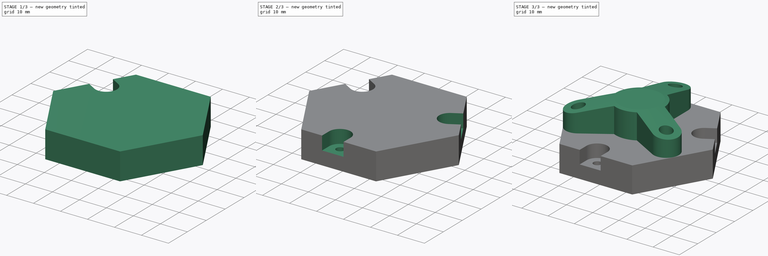
[diagram: build sequence overview — one tinted view per stage of 3, left to right]
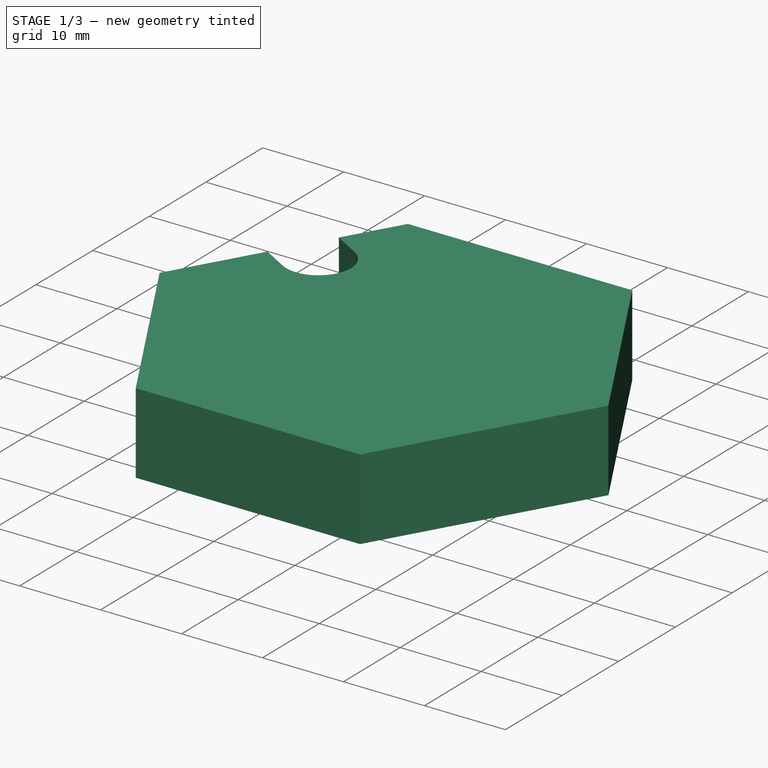
[diagram: stage 1 of 3 — iso view after this stage's code; geometry added in this stage tinted green]
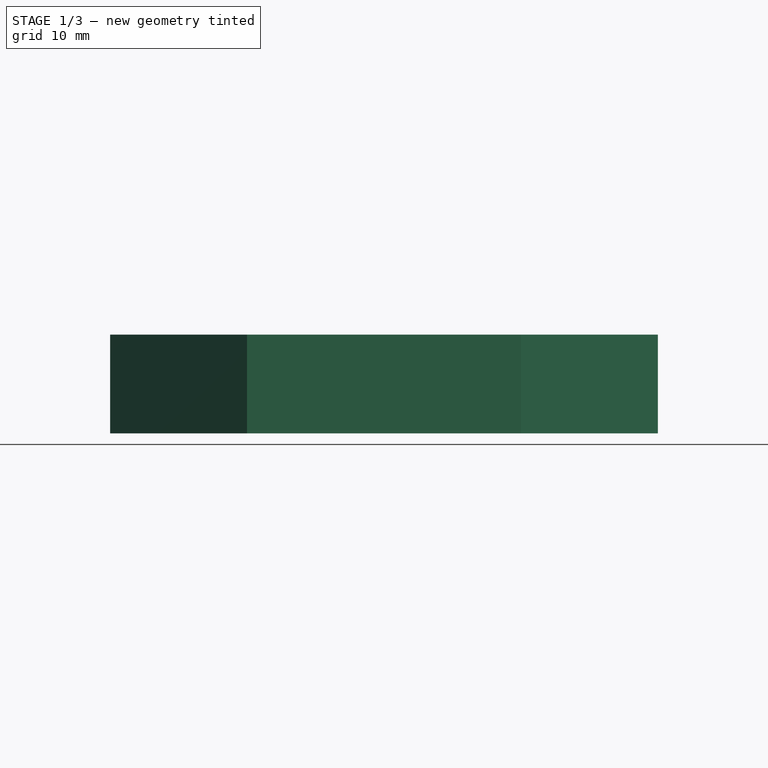
[diagram: stage 1 of 3 — front view after this stage's code; geometry added in this stage tinted green]
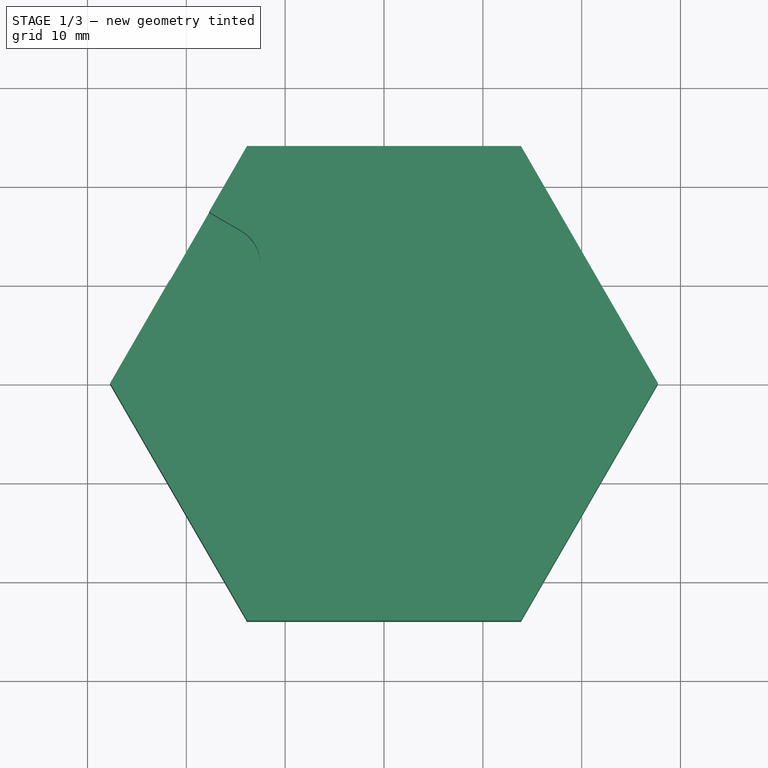
[diagram: stage 1 of 3 — top view after this stage's code; geometry added in this stage tinted green]
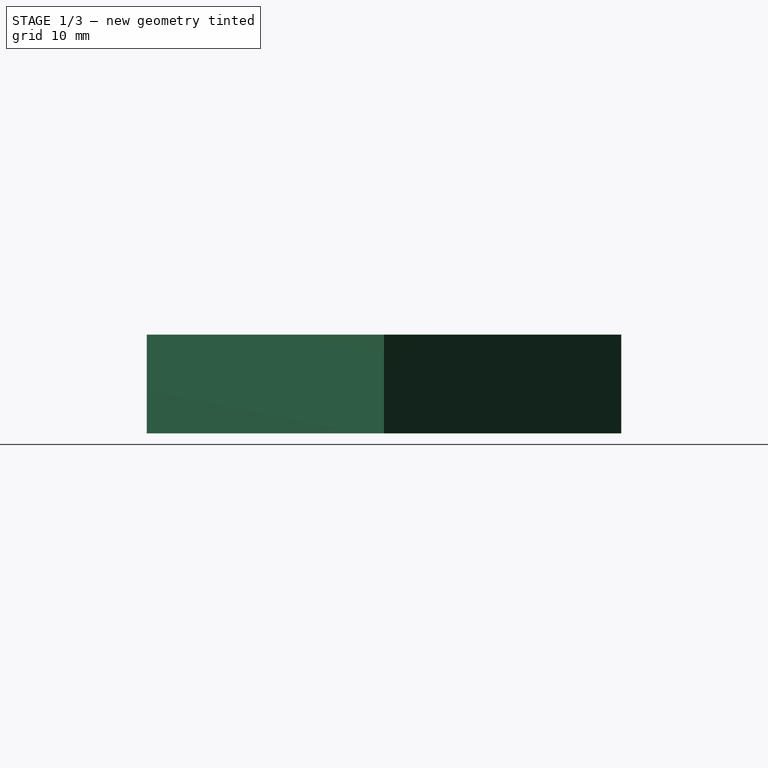
[diagram: stage 1 of 3 — right view after this stage's code; geometry added in this stage tinted green]
FCSTD DOCUMENT  (FreeCAD 0.21R33771 (Git))
Label: ex24
License: All rights reserved
LicenseURL: http://en.wikipedia.org/wiki/All_rights_reserved
objects: Sketcher::SketchObject×6, PartDesign::Pad×2, PartDesign::Pocket×2, PartDesign::PolarPattern×1, PartDesign::Groove×1, PartDesign::Body×1
note: 18 computed .brp shape members not serialized (recipe doc carries the construction recipe); baked Part::Feature solids carry a one-line shape summary decoded from their .brp

FEATURE [Sketcher::SketchObject] Sketch
  FullyConstrained = true
  MapMode = 5
  Support = -> [XY_Plane]
  sketch-geometry (7):
    g0: LineSegment StartX=13.8564 StartY=-24 StartZ=0 EndX=27.7128 EndY=0 EndZ=0
    g1: LineSegment StartX=27.7128 StartY=0 StartZ=0 EndX=13.8564 EndY=24 EndZ=0
    g2: LineSegment StartX=13.8564 StartY=24 StartZ=0 EndX=-13.8564 EndY=24 EndZ=0
    g3: LineSegment StartX=-13.8564 StartY=24 StartZ=0 EndX=-27.7128 EndY=3.6e-15 EndZ=0
    g4: LineSegment StartX=-27.7128 StartY=3.5e-15 StartZ=0 EndX=-13.8564 EndY=-24 EndZ=0
    g5: LineSegment StartX=-13.8564 StartY=-24 StartZ=0 EndX=13.8564 EndY=-24 EndZ=0
    g6: Circle CenterX=0 CenterY=0 CenterZ=0 NormalX=0 NormalY=0 NormalZ=1 AngleXU=0 Radius=27.7128
  constraints (16):
    c: Coincident(g0,g1)
    c: Coincident(g1,g2)
    c: Coincident(g2,g3)
    c: Coincident(g3,g4)
    c: Coincident(g4,g5)
    c: Coincident(g5,g0)
    c: Equal(g0, g1-g5) x5
    c: PointOnObject(g0,g6)
    c: PointOnObject(g1,g6)
    c: PointOnObject(g2,g6)
    c: PointOnObject(g3,g6)
    c: PointOnObject(g4,g6)
    c: PointOnObject(g5,g6)
    c: Coincident(g6,g-1)
    c: Horizontal(g2)
    c: DistanceY(g6,g2) = 24
FEATURE [PartDesign::Pad] Pad
  Direction = (0,0,1)
  Length = 10
  Length2 = 10
  Profile = -> Sketch
  ReferenceAxis = -> Sketch [N_Axis]
  Refine = true
  Type = 0
FEATURE [Sketcher::SketchObject] Sketch001
  FullyConstrained = false
  MapMode = 5
  Placement = pos=(0,0,10) rot=(0,0,1;0rad)
  Support = -> [Pad]
  sketch-geometry (4):
    g0: ArcOfCircle CenterX=-16.4827 CenterY=12 CenterZ=0 NormalX=0 NormalY=0 NormalZ=1 AngleXU=0 Radius=3.98523 StartAngle=4.18502 EndAngle=7.32662
    g1: ArcOfCircle CenterX=-30.4093 CenterY=20.1106 CenterZ=0 NormalX=0 NormalY=0 NormalZ=1 AngleXU=0 Radius=3.98523 StartAngle=1.04343 EndAngle=4.18502
    g2: LineSegment StartX=-14.4771 StartY=15.4438 StartZ=0 EndX=-28.4037 EndY=23.5544 EndZ=0
    g3: LineSegment StartX=-32.4149 StartY=16.6668 StartZ=0 EndX=-18.4883 EndY=8.55622 EndZ=0
  constraints (6):
    c: Tangent(g0,g2) = -1.5708
    c: Tangent(g2,g1) = -1.5708
    c: Tangent(g1,g3) = -1.5708
    c: Tangent(g3,g0) = -1.5708
    c: Equal(g0,g1)
    c: DistanceY(g-1,g0) = 12
FEATURE [PartDesign::Pocket] Pocket
  BaseFeature = -> Pad
  Direction = (0,0,-1)
  Length = 5
  Length2 = 5
  Profile = -> Sketch001
  ReferenceAxis = -> Sketch001 [N_Axis]
  Refine = true
  Type = 0
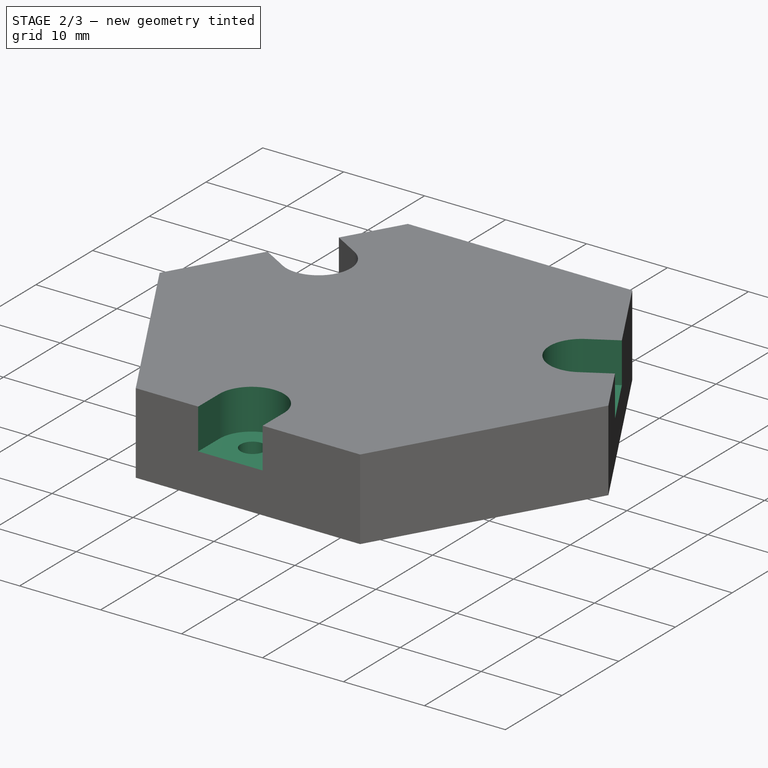
[diagram: stage 2 of 3 — iso view after this stage's code; geometry added in this stage tinted green]
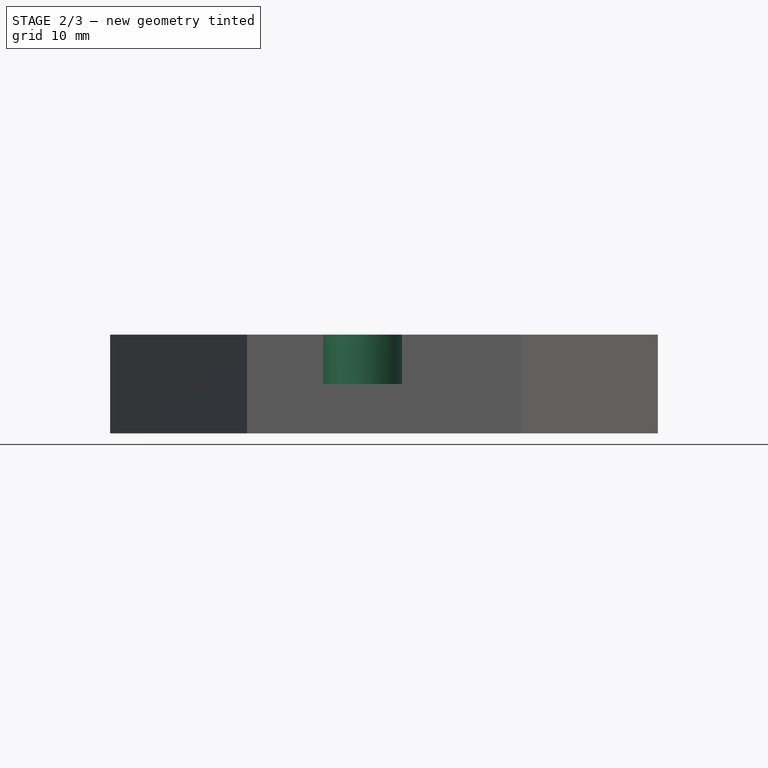
[diagram: stage 2 of 3 — front view after this stage's code; geometry added in this stage tinted green]
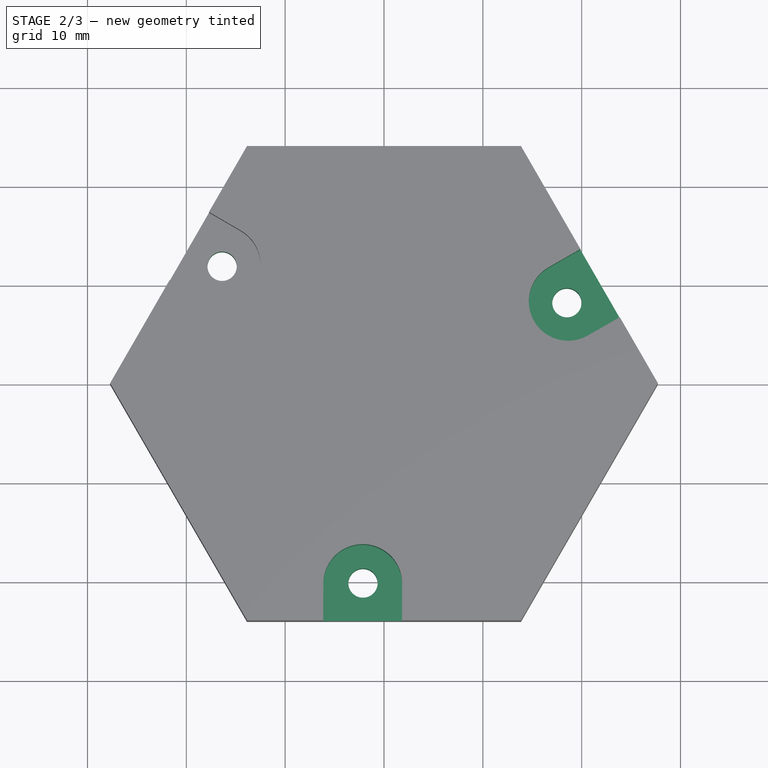
[diagram: stage 2 of 3 — top view after this stage's code; geometry added in this stage tinted green]
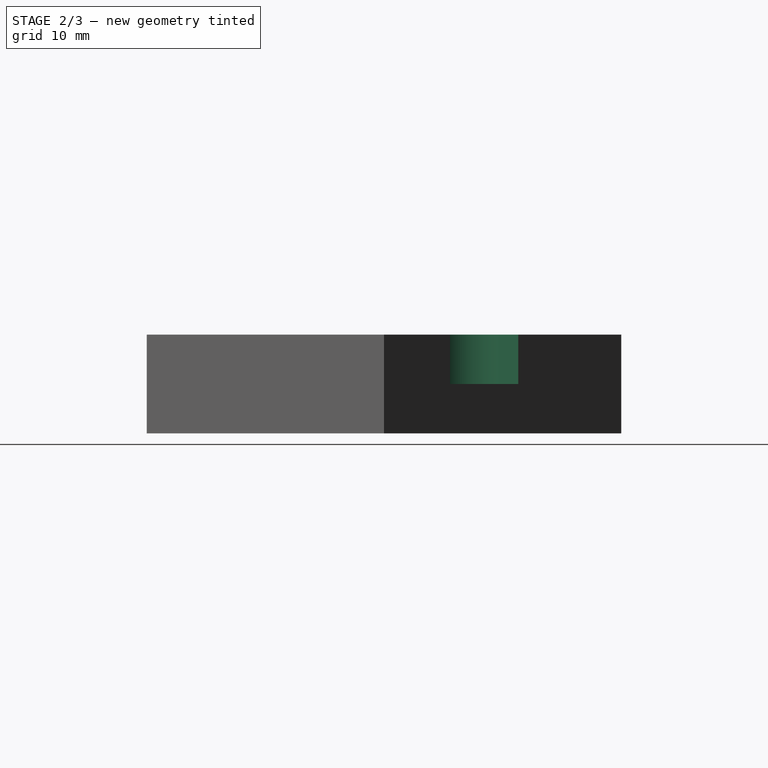
[diagram: stage 2 of 3 — right view after this stage's code; geometry added in this stage tinted green]
FEATURE [Sketcher::SketchObject] Sketch002
  FullyConstrained = false
  MapMode = 5
  Placement = pos=(0,0,5) rot=(0,0,1;0rad)
  Support = -> [Pocket]
  sketch-geometry (1):
    g0: Circle CenterX=-16.3794 CenterY=11.9113 CenterZ=0 NormalX=0 NormalY=0 NormalZ=1 AngleXU=0 Radius=1.48177
FEATURE [PartDesign::Pocket] Pocket001
  BaseFeature = -> Pocket
  Direction = (0,0,-1)
  Length = 5
  Length2 = 5
  Profile = -> Sketch002
  ReferenceAxis = -> Sketch002 [N_Axis]
  Refine = true
  Type = 0
FEATURE [PartDesign::PolarPattern] PolarPattern
  Angle = 360
  Axis = -> Sketch002 [N_Axis]
  BaseFeature = -> Pocket001
  Occurrences = 3
  Originals = -> [Pocket001,Pocket]
  Refine = true
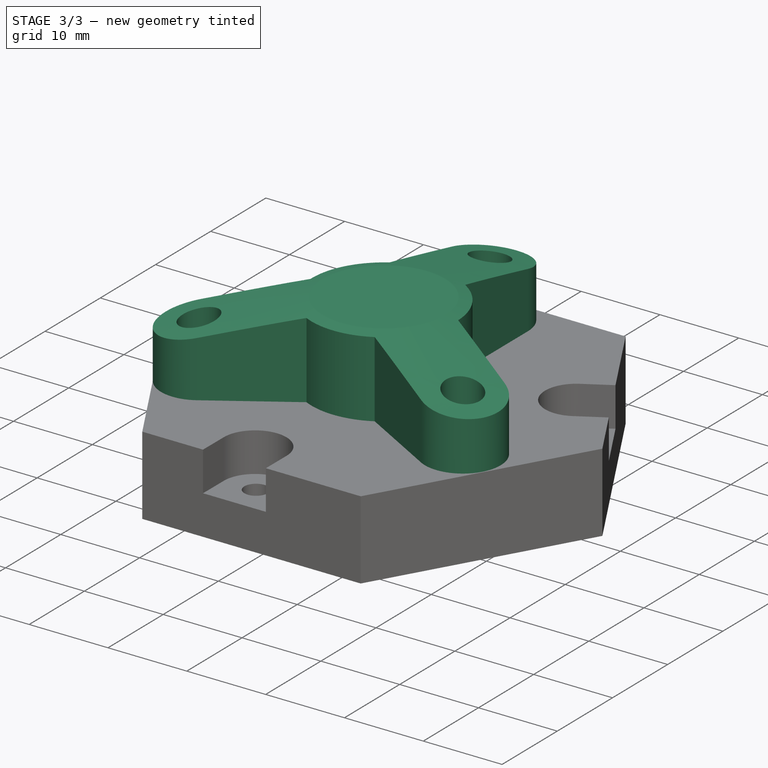
[diagram: stage 3 of 3 — iso view after this stage's code; geometry added in this stage tinted green]
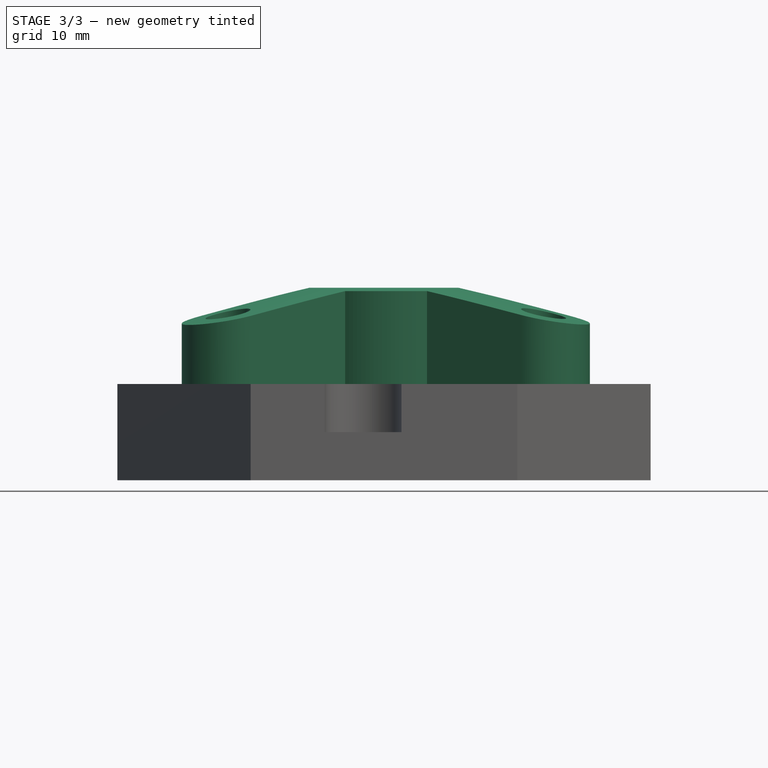
[diagram: stage 3 of 3 — front view after this stage's code; geometry added in this stage tinted green]
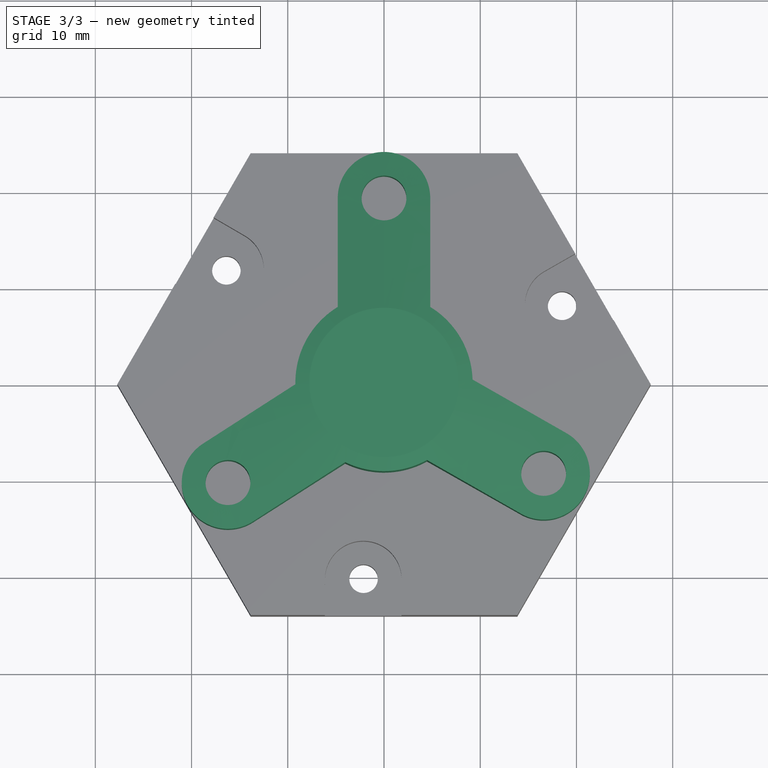
[diagram: stage 3 of 3 — top view after this stage's code; geometry added in this stage tinted green]
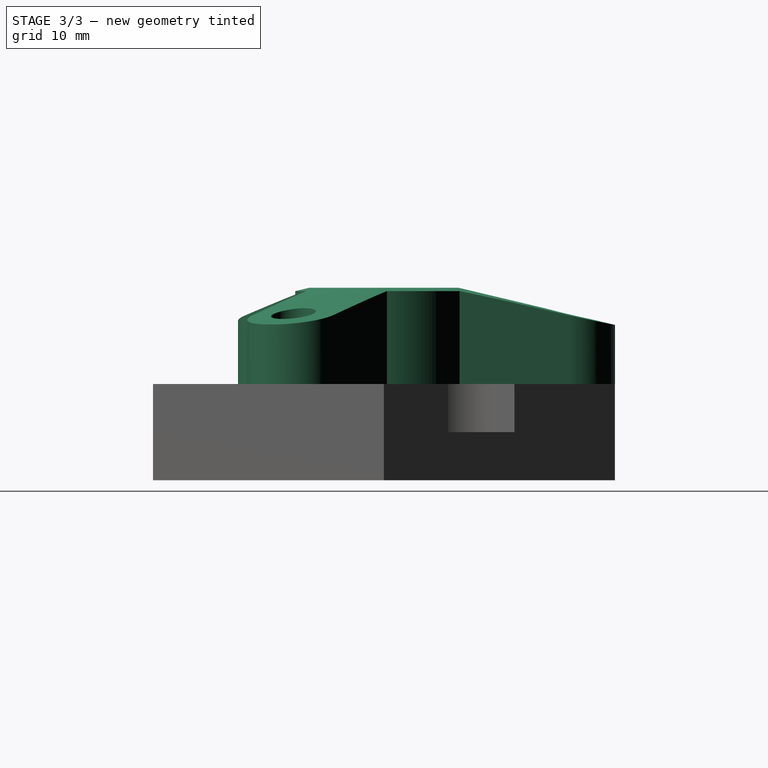
[diagram: stage 3 of 3 — right view after this stage's code; geometry added in this stage tinted green]
FEATURE [Sketcher::SketchObject] Sketch003
  FullyConstrained = false
  MapMode = 5
  Placement = pos=(0,0,10) rot=(0,0,1;0rad)
  Support = -> [PolarPattern]
  sketch-geometry (15):
    g0: ArcOfCircle CenterX=0 CenterY=0 CenterZ=0 NormalX=0 NormalY=0 NormalZ=1 AngleXU=0 Radius=9.20939 StartAngle=4.25883 EndAngle=5.21869
    g1: ArcOfCircle CenterX=0 CenterY=19.2184 CenterZ=0 NormalX=0 NormalY=0 NormalZ=1 AngleXU=0 Radius=4.805 StartAngle=1e-16 EndAngle=3.14159
    g2: LineSegment StartX=-4.805 StartY=19.2184 StartZ=0 EndX=-4.805 EndY=7.85652 EndZ=0
    g3: ArcOfCircle CenterX=-16.2152 CenterY=-10.3554 CenterZ=0 NormalX=0 NormalY=0 NormalZ=1 AngleXU=0 Radius=4.805 StartAngle=2.13913 EndAngle=5.28072
    g4: LineSegment StartX=-13.6291 StartY=-14.405 StartZ=0 EndX=-4.03528 EndY=-8.27825 EndZ=0
    g5: ArcOfCircle CenterX=16.5893 CenterY=-9.40158 CenterZ=0 NormalX=0 NormalY=0 NormalZ=1 AngleXU=0 Radius=4.805 StartAngle=4.1968 EndAngle=7.33839
    g6: LineSegment StartX=18.9584 StartY=-5.22123 StartZ=0 EndX=9.20429 EndY=0.306686 EndZ=0
    g7: LineSegment StartX=-9.20765 StartY=-0.178949 StartZ=0 EndX=-18.8014 EndY=-6.30572 EndZ=0
    g8: ArcOfCircle CenterX=0 CenterY=0 CenterZ=0 NormalX=0 NormalY=0 NormalZ=1 AngleXU=0 Radius=9.20939 StartAngle=2.1197 EndAngle=3.16103
    g9: LineSegment StartX=4.805 StartY=7.85652 StartZ=0 EndX=4.805 EndY=19.2184 EndZ=0
    g10: ArcOfCircle CenterX=0 CenterY=0 CenterZ=0 NormalX=0 NormalY=0 NormalZ=1 AngleXU=0 Radius=9.20939 StartAngle=0.0333075 EndAngle=1.0219
    g11: LineSegment StartX=4.46606 StartY=-8.05402 StartZ=0 EndX=14.2202 EndY=-13.5819 EndZ=0
    g12: Circle CenterX=0 CenterY=19.2184 CenterZ=0 NormalX=0 NormalY=0 NormalZ=1 AngleXU=0 Radius=2.33239
    g13: Circle CenterX=-16.2152 CenterY=-10.3554 CenterZ=0 NormalX=0 NormalY=0 NormalZ=1 AngleXU=0 Radius=2.33239
    g14: Circle CenterX=16.5893 CenterY=-9.40158 CenterZ=0 NormalX=0 NormalY=0 NormalZ=1 AngleXU=0 Radius=2.33239
  constraints (26):
    c: Coincident(g0,g-1)
    c: Coincident(g9,g1) = -1.5708
    c: Tangent(g1,g2) = -1.5708
    c: PointOnObject(g1,g-2)
    c: Coincident(g7,g3) = -1.5708
    c: Tangent(g3,g4) = -1.5708
    c: DistanceX(g1,g1) = 9.61
    c: Distance(g3,g3) = 9.61
    c: Coincident(g11,g5) = -1.5708
    c: Tangent(g5,g6) = -1.5708
    c: Distance(g5,g5) = 9.61
    c: Coincident(g0,g4)
    c: Coincident(g7,g8)
    c: Equal(g0,g8)
    c: Coincident(g8,g2)
    c: Coincident(g0,g8)
    c: Coincident(g9,g10)
    c: Equal(g0,g10)
    c: Coincident(g10,g6)
    c: Coincident(g0,g10)
    c: Coincident(g11,g0)
    c: Coincident(g12,g1)
    c: Coincident(g13,g3)
    c: Coincident(g14,g5)
    c: Equal(g12,g13)
    c: Equal(g13,g14)
FEATURE [PartDesign::Pad] Pad001
  BaseFeature = -> PolarPattern
  Direction = (0,0,1)
  Length = 10
  Length2 = 10
  Profile = -> Sketch003
  ReferenceAxis = -> Sketch003 [N_Axis]
  Refine = true
  Type = 0
FEATURE [Sketcher::SketchObject] Sketch004
  FullyConstrained = true
  MapMode = 5
  Placement = pos=(0,0,0) rot=(1,0,0;1.5708rad)
  Support = -> [XZ_Plane]
FEATURE [Sketcher::SketchObject] Sketch005
  FullyConstrained = false
  MapMode = 5
  Placement = pos=(0,0,0) rot=(0.57735,0.57735,0.57735;2.0944rad)
  Support = -> [YZ_Plane]
  sketch-geometry (3):
    g0: LineSegment StartX=0 StartY=21.8414 StartZ=0 EndX=31.1853 EndY=14.4447 EndZ=0
    g1: LineSegment StartX=0 StartY=21.8414 StartZ=0 EndX=30.4547 EndY=21.8414 EndZ=0
    g2: LineSegment StartX=30.4547 StartY=21.8414 StartZ=0 EndX=31.1853 EndY=14.4447 EndZ=0
  constraints (5):
    c: PointOnObject(g0,g-2)
    c: Coincident(g1,g0)
    c: Horizontal(g1)
    c: Coincident(g2,g1)
    c: Coincident(g2,g0)
FEATURE [PartDesign::Groove] Groove
  Angle = 360
  Axis = (-2e-16,3e-16,1)
  Base = (0,0,0)
  BaseFeature = -> Pad001
  Profile = -> Sketch005
  ReferenceAxis = -> Sketch005 [V_Axis]
  Refine = true
FEATURE [PartDesign::Body] Body
  Group = -> [Sketch,Pad,Sketch001,Pocket,Sketch002,Pocket001,PolarPattern,Sketch003,Pad001,Sketch004,Sketch005,Groove]
  Origin = -> Origin
  Tip = -> Groove
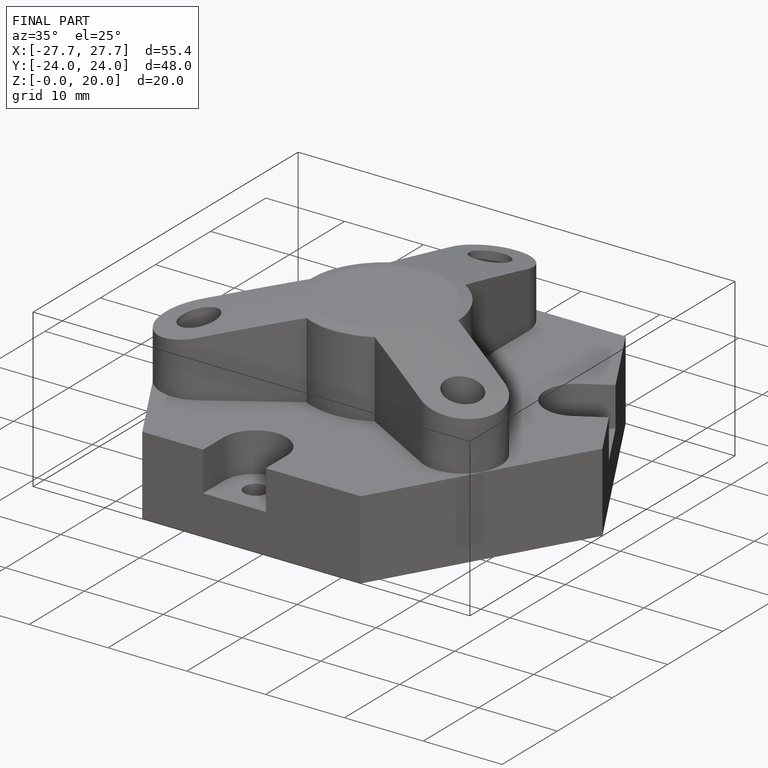
[diagram: finished part — iso view with bounding-box wireframe]
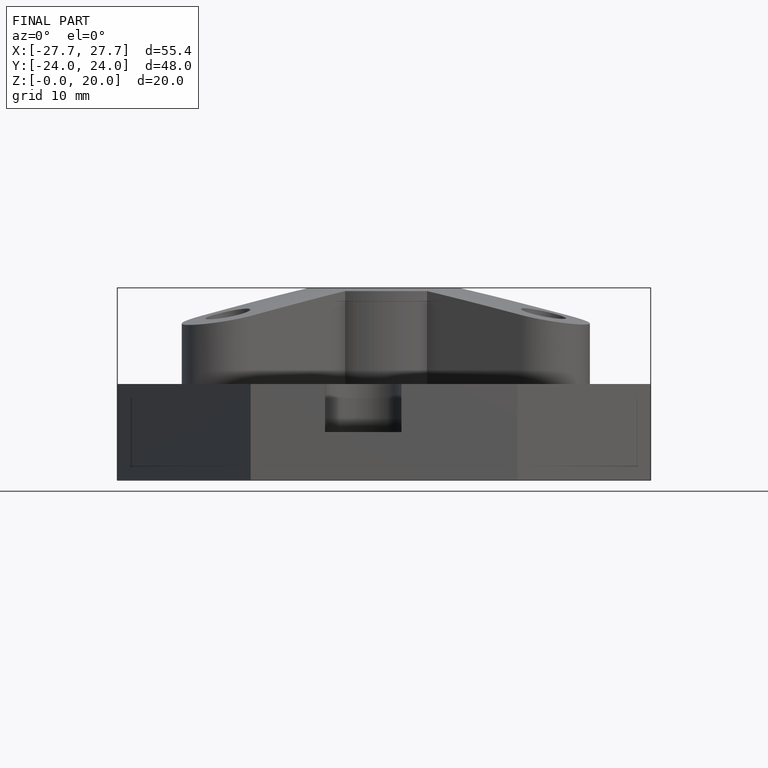
[diagram: finished part — front view with bounding-box wireframe]
